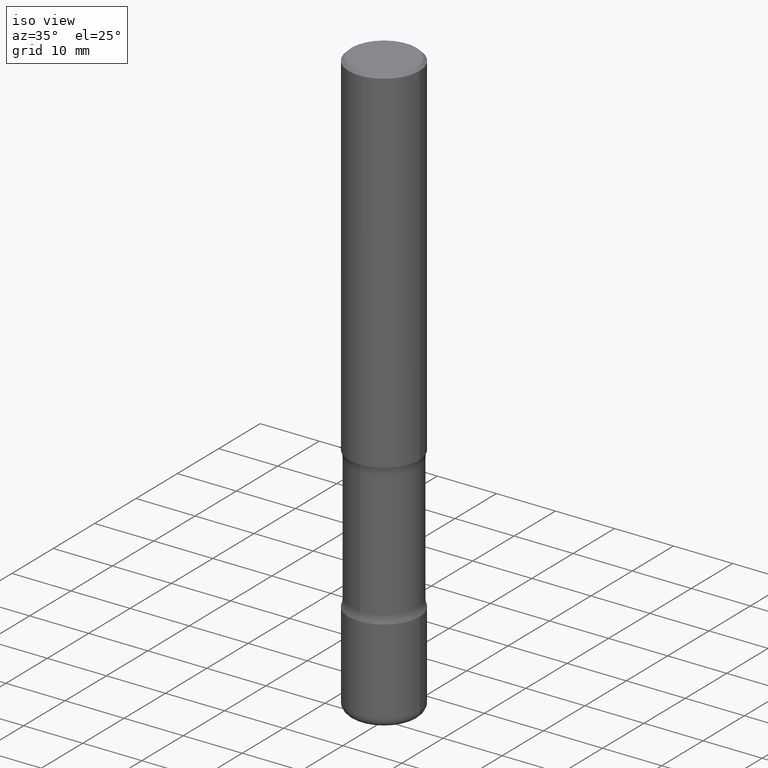
[diagram: clean part render]
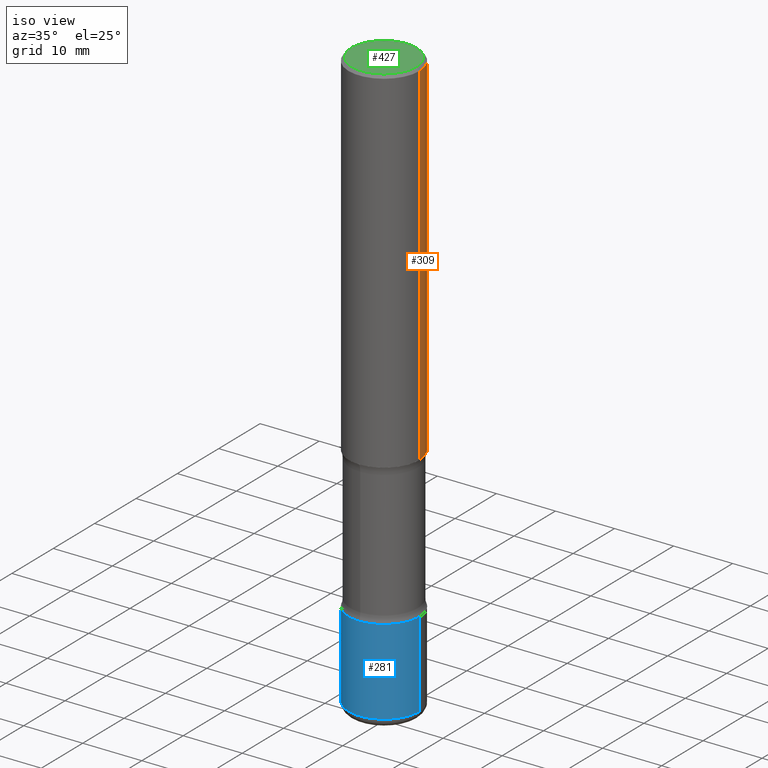
[diagram: same view with three faces highlighted in distinct colors, each labeled with its STEP entity id]
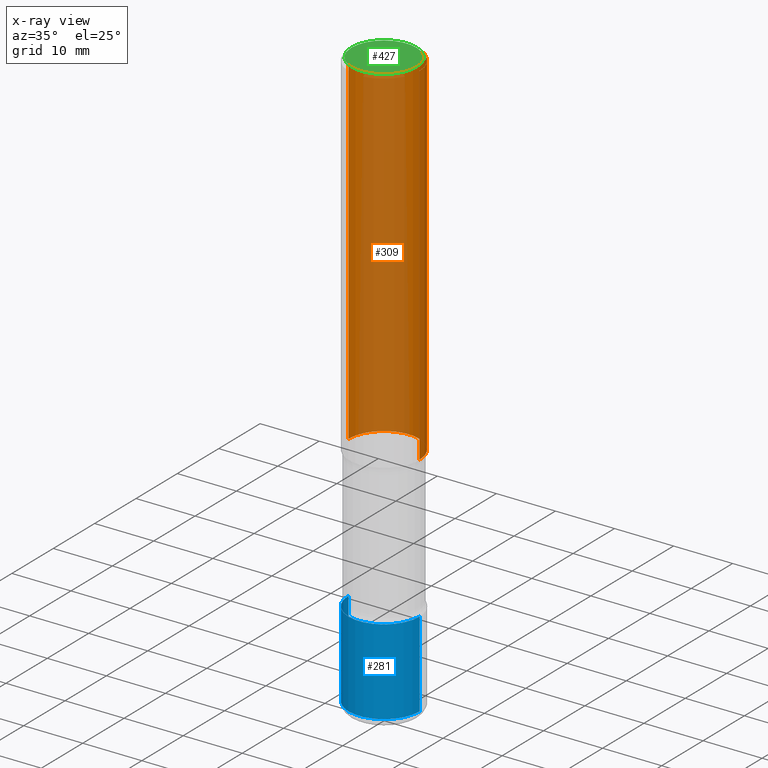
[diagram: x-ray of the same camera — body ghosted, the three highlighted faces saturated]
A machine part, iso view with three faces highlighted in distinct colors.
The next image is the same camera in x-ray (body ghosted, the three faces saturated) — at least one of them is partly hidden behind the body in this view.
Their STEP definitions:

[orange] entity #309 — the highlighted cylindrical surface (partial cylindrical patch) has radius 5.9995 mm, axis along (-0, 0, 1).
#4 = DIRECTION ( 'NONE',  ( 1.000000000000000000, -6.982962677686266711E-15, 0.000000000000000000 ) ) ;
#5 = CARTESIAN_POINT ( 'NONE',  ( 0.2361999999999999933, -1.649375784469496131E-15, 1.151752954443000088E-29 ) ) ;
#13 = EDGE_CURVE ( 'NONE', #264, #363, #218, .T. ) ;
#27 = VECTOR ( 'NONE', #36, 39.37007874015748143 ) ;
#28 = CARTESIAN_POINT ( 'NONE',  ( -0.2361999999999998545, 1.579546157692632044E-15, -0.02000000000000006981 ) ) ;
#33 = CARTESIAN_POINT ( 'NONE',  ( 0.2361999999999998545, -1.690279253850497785E-15, -0.02000000000000006981 ) ) ;
#36 = DIRECTION ( 'NONE',  ( -2.445468806185136877E-29, 3.491481338843145188E-15, 1.000000000000000000 ) ) ;
#92 = CARTESIAN_POINT ( 'NONE',  ( 0.2362000000000001598, -9.896953003084776152E-15, -2.362200000000000077 ) ) ;
#113 = ORIENTED_EDGE ( 'NONE', *, *, #13, .F. ) ;
#116 = DIRECTION ( 'NONE',  ( -2.445468806185136597E-29, 3.491481338843145583E-15, 1.000000000000000000 ) ) ;
#131 = CIRCLE ( 'NONE', #234, 0.2361999999999998545 ) ;
#140 = CIRCLE ( 'NONE', #290, 0.2362000000000001598 ) ;
#159 = AXIS2_PLACEMENT_3D ( 'NONE', #282, #116, #199 ) ;
#194 = CYLINDRICAL_SURFACE ( 'NONE', #159, 0.2361999999999999933 ) ;
#199 = DIRECTION ( 'NONE',  ( 1.000000000000000000, -6.982962677686266711E-15, 4.876176775795936353E-29 ) ) ;
#211 = EDGE_CURVE ( 'NONE', #264, #529, #140, .T. ) ;
#218 = LINE ( 'NONE', #5, #465 ) ;
#227 = CARTESIAN_POINT ( 'NONE',  ( 5.776686413970529753E-29, -8.247577218615279626E-15, -2.362200000000000077 ) ) ;
#234 = AXIS2_PLACEMENT_3D ( 'NONE', #255, #348, #4 ) ;
#255 = CARTESIAN_POINT ( 'NONE',  ( 4.890937612370289799E-31, -6.982962677686315028E-17, -0.02000000000000006981 ) ) ;
#264 = VERTEX_POINT ( 'NONE', #92 ) ;
#266 = DIRECTION ( 'NONE',  ( -2.445468806185136597E-29, 3.491481338843145583E-15, 1.000000000000000000 ) ) ;
#270 = DIRECTION ( 'NONE',  ( 1.000000000000000000, -6.982962677686268288E-15, 0.000000000000000000 ) ) ;
#279 = VERTEX_POINT ( 'NONE', #28 ) ;
#280 = FACE_OUTER_BOUND ( 'NONE', #462, .T. ) ;
#282 = CARTESIAN_POINT ( 'NONE',  ( 0.000000000000000000, 0.000000000000000000, 0.000000000000000000 ) ) ;
#290 = AXIS2_PLACEMENT_3D ( 'NONE', #227, #266, #270 ) ;
#294 = CARTESIAN_POINT ( 'NONE',  ( -0.2361999999999999933, 1.678301941865356591E-15, -1.161852468318208757E-29 ) ) ;
#309 = ADVANCED_FACE ( 'NONE', ( #280 ), #194, .T. ) ;
#348 = DIRECTION ( 'NONE',  ( -2.445468806185136597E-29, 3.491481338843145583E-15, 1.000000000000000000 ) ) ;
#363 = VERTEX_POINT ( 'NONE', #33 ) ;
#369 = ORIENTED_EDGE ( 'NONE', *, *, #496, .T. ) ;
#421 = LINE ( 'NONE', #294, #27 ) ;
#432 = DIRECTION ( 'NONE',  ( -2.445468806185136877E-29, 3.491481338843145188E-15, 1.000000000000000000 ) ) ;
#433 = EDGE_CURVE ( 'NONE', #363, #279, #131, .T. ) ;
#434 = CARTESIAN_POINT ( 'NONE',  ( -0.2362000000000001598, -2.480401480830709941E-15, -2.362200000000000077 ) ) ;
#462 = EDGE_LOOP ( 'NONE', ( #473, #369, #466, #113 ) ) ;
#465 = VECTOR ( 'NONE', #432, 39.37007874015748143 ) ;
#466 = ORIENTED_EDGE ( 'NONE', *, *, #433, .F. ) ;
#473 = ORIENTED_EDGE ( 'NONE', *, *, #211, .T. ) ;
#496 = EDGE_CURVE ( 'NONE', #529, #279, #421, .T. ) ;
#529 = VERTEX_POINT ( 'NONE', #434 ) ;

[blue] entity #281 — the highlighted cylindrical surface (partial cylindrical patch) has radius 5.9995 mm, axis along (-0, 0, 1).
#30 = LINE ( 'NONE', #161, #42 ) ;
#42 = VECTOR ( 'NONE', #456, 39.37007874015748143 ) ;
#60 = DIRECTION ( 'NONE',  ( -2.445468806185136877E-29, 3.491481338843145188E-15, 1.000000000000000000 ) ) ;
#62 = VERTEX_POINT ( 'NONE', #86 ) ;
#75 = AXIS2_PLACEMENT_3D ( 'NONE', #557, #475, #292 ) ;
#86 = CARTESIAN_POINT ( 'NONE',  ( 0.2362000000000002153, -1.319605372015766534E-14, -3.307100000000000151 ) ) ;
#94 = CIRCLE ( 'NONE', #75, 0.2362000000000002153 ) ;
#161 = CARTESIAN_POINT ( 'NONE',  ( 0.2362000000000002709, -1.649375784469498103E-15, 1.151752954443001489E-29 ) ) ;
#206 = CIRCLE ( 'NONE', #216, 0.2362000000000003264 ) ;
#216 = AXIS2_PLACEMENT_3D ( 'NONE', #337, #259, #425 ) ;
#221 = EDGE_CURVE ( 'NONE', #418, #545, #539, .T. ) ;
#259 = DIRECTION ( 'NONE',  ( -2.445468806185136597E-29, 3.491481338843145583E-15, 1.000000000000000000 ) ) ;
#263 = VERTEX_POINT ( 'NONE', #314 ) ;
#281 = ADVANCED_FACE ( 'NONE', ( #540 ), #371, .T. ) ;
#286 = CARTESIAN_POINT ( 'NONE',  ( -0.2362000000000004374, -1.186131354203447347E-14, -3.877899999999999459 ) ) ;
#289 = EDGE_CURVE ( 'NONE', #263, #62, #30, .T. ) ;
#292 = DIRECTION ( 'NONE',  ( 1.000000000000000000, -6.982962677686266711E-15, 0.000000000000000000 ) ) ;
#314 = CARTESIAN_POINT ( 'NONE',  ( 0.2362000000000004374, -1.518899126836933270E-14, -3.877899999999999459 ) ) ;
#333 = ORIENTED_EDGE ( 'NONE', *, *, #455, .F. ) ;
#336 = DIRECTION ( 'NONE',  ( -2.445468806185136597E-29, 3.491481338843145583E-15, 1.000000000000000000 ) ) ;
#337 = CARTESIAN_POINT ( 'NONE',  ( 9.483283483505340095E-29, -1.353961548389983302E-14, -3.877899999999999459 ) ) ;
#351 = AXIS2_PLACEMENT_3D ( 'NONE', #453, #336, #410 ) ;
#371 = CYLINDRICAL_SURFACE ( 'NONE', #351, 0.2362000000000002709 ) ;
#410 = DIRECTION ( 'NONE',  ( 1.000000000000000000, -6.982962677686266711E-15, 4.876176775795936353E-29 ) ) ;
#418 = VERTEX_POINT ( 'NONE', #286 ) ;
#423 = ORIENTED_EDGE ( 'NONE', *, *, #289, .T. ) ;
#425 = DIRECTION ( 'NONE',  ( 1.000000000000000000, -6.982962677686270655E-15, 0.000000000000000000 ) ) ;
#437 = ORIENTED_EDGE ( 'NONE', *, *, #221, .F. ) ;
#451 = CARTESIAN_POINT ( 'NONE',  ( -0.2362000000000002709, 1.678301941865358564E-15, -1.161852468318210018E-29 ) ) ;
#453 = CARTESIAN_POINT ( 'NONE',  ( 0.000000000000000000, 0.000000000000000000, 0.000000000000000000 ) ) ;
#455 = EDGE_CURVE ( 'NONE', #545, #62, #94, .T. ) ;
#456 = DIRECTION ( 'NONE',  ( -2.445468806185136877E-29, 3.491481338843145188E-15, 1.000000000000000000 ) ) ;
#457 = VECTOR ( 'NONE', #60, 39.37007874015748143 ) ;
#475 = DIRECTION ( 'NONE',  ( -2.445468806185136597E-29, 3.491481338843145583E-15, 1.000000000000000000 ) ) ;
#510 = ORIENTED_EDGE ( 'NONE', *, *, #516, .T. ) ;
#511 = CARTESIAN_POINT ( 'NONE',  ( -0.2362000000000002153, -1.086484476792864136E-14, -3.307100000000000151 ) ) ;
#516 = EDGE_CURVE ( 'NONE', #418, #263, #206, .T. ) ;
#524 = EDGE_LOOP ( 'NONE', ( #437, #510, #423, #333 ) ) ;
#539 = LINE ( 'NONE', #451, #457 ) ;
#540 = FACE_OUTER_BOUND ( 'NONE', #524, .T. ) ;
#545 = VERTEX_POINT ( 'NONE', #511 ) ;
#557 = CARTESIAN_POINT ( 'NONE',  ( 8.087409888934865187E-29, -1.154667793568816723E-14, -3.307100000000000151 ) ) ;

[green] entity #427 — the highlighted planar face has unit normal (0, -0, -1).
#38 = CARTESIAN_POINT ( 'NONE',  ( -1.043851414335219820E-46, 1.490343170380447200E-32, 4.268512490100411279E-18 ) ) ;
#53 = CIRCLE ( 'NONE', #523, 0.2161999999999998090 ) ;
#54 = CARTESIAN_POINT ( 'NONE',  ( -0.2161999999999998090, 1.544631344304200789E-15, 4.268512490089730842E-18 ) ) ;
#72 = PLANE ( 'NONE',  #313 ) ;
#76 = DIRECTION ( 'NONE',  ( -2.445468806185136597E-29, 3.491481338843145583E-15, 1.000000000000000000 ) ) ;
#198 = CARTESIAN_POINT ( 'NONE',  ( 0.2161999999999998090, -1.586759460484350805E-15, 4.268512490111238857E-18 ) ) ;
#208 = ORIENTED_EDGE ( 'NONE', *, *, #537, .T. ) ;
#213 = VERTEX_POINT ( 'NONE', #54 ) ;
#237 = DIRECTION ( 'NONE',  ( -1.000000000000000000, 6.982962677686265922E-15, -4.876176775795935793E-29 ) ) ;
#300 = CIRCLE ( 'NONE', #387, 0.2161999999999998090 ) ;
#313 = AXIS2_PLACEMENT_3D ( 'NONE', #366, #322, #237 ) ;
#322 = DIRECTION ( 'NONE',  ( 2.438088387897960049E-29, -3.491481338843145188E-15, -1.000000000000000000 ) ) ;
#339 = DIRECTION ( 'NONE',  ( 1.000000000000000000, -6.982962677686266711E-15, 4.876217060660160159E-29 ) ) ;
#344 = VERTEX_POINT ( 'NONE', #198 ) ;
#347 = ORIENTED_EDGE ( 'NONE', *, *, #503, .T. ) ;
#366 = CARTESIAN_POINT ( 'NONE',  ( 1.509716530915769337E-15, 0.2161999999999998090, -7.527240092128372163E-16 ) ) ;
#387 = AXIS2_PLACEMENT_3D ( 'NONE', #553, #76, #472 ) ;
#427 = ADVANCED_FACE ( 'NONE', ( #463 ), #72, .F. ) ;
#463 = FACE_OUTER_BOUND ( 'NONE', #470, .T. ) ;
#470 = EDGE_LOOP ( 'NONE', ( #208, #347 ) ) ;
#472 = DIRECTION ( 'NONE',  ( 1.000000000000000000, -6.982962677686266711E-15, 4.876217060660160159E-29 ) ) ;
#503 = EDGE_CURVE ( 'NONE', #344, #213, #300, .T. ) ;
#523 = AXIS2_PLACEMENT_3D ( 'NONE', #38, #554, #339 ) ;
#537 = EDGE_CURVE ( 'NONE', #213, #344, #53, .T. ) ;
#553 = CARTESIAN_POINT ( 'NONE',  ( -1.043851414335219820E-46, 1.490343170380447200E-32, 4.268512490100411279E-18 ) ) ;
#554 = DIRECTION ( 'NONE',  ( -2.445468806185136597E-29, 3.491481338843145583E-15, 1.000000000000000000 ) ) ;